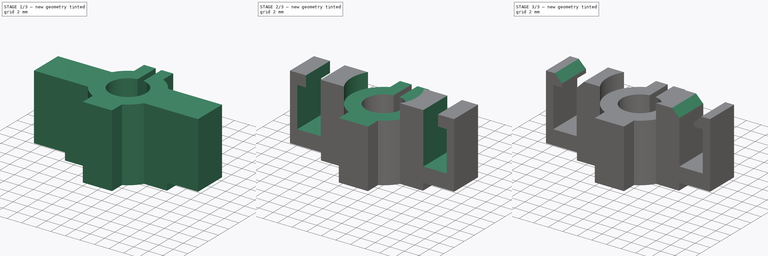
[diagram: build sequence overview — one tinted view per stage of 3, left to right]
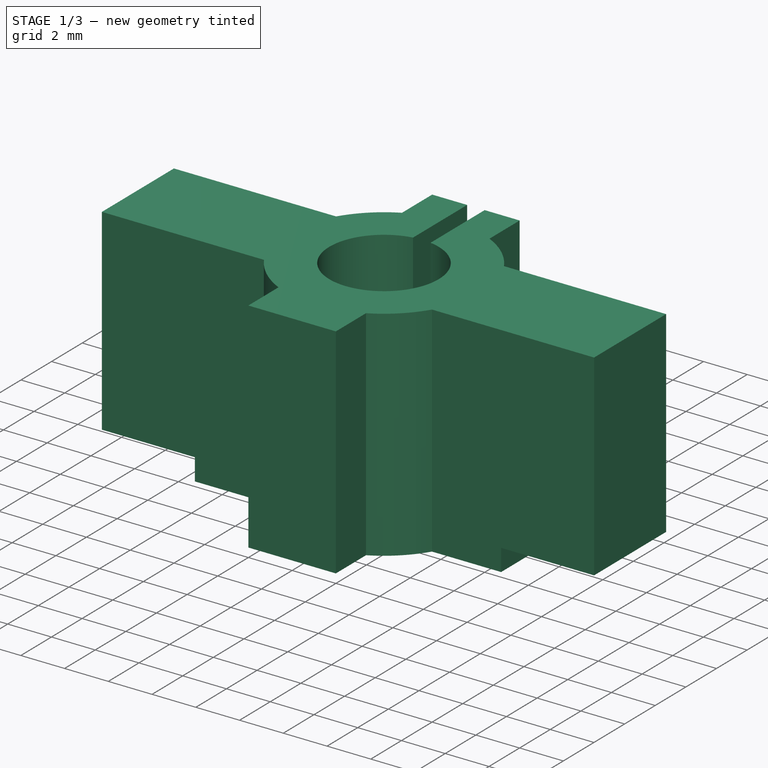
[diagram: stage 1 of 3 — iso view after this stage's code; geometry added in this stage tinted green]
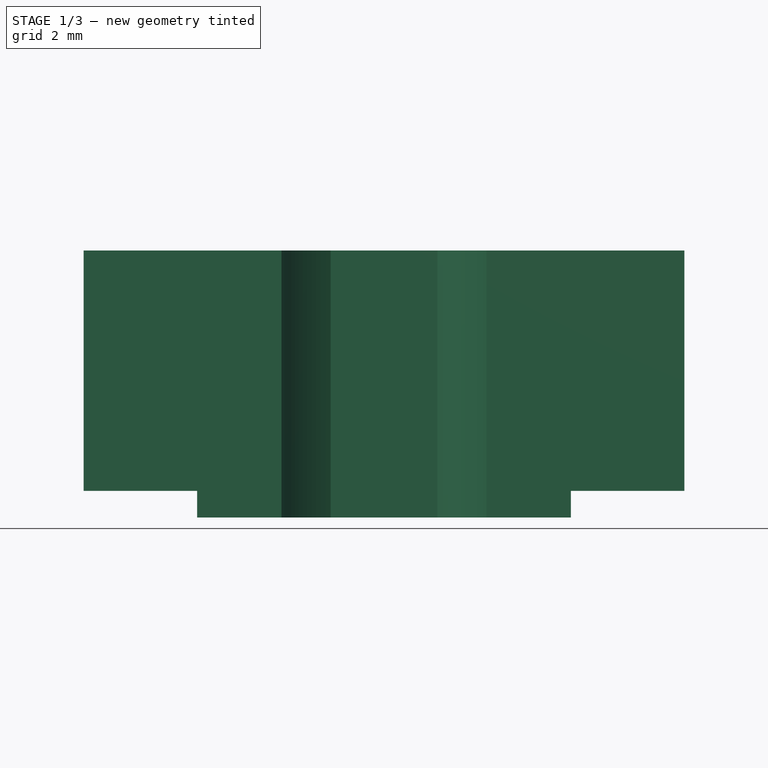
[diagram: stage 1 of 3 — front view after this stage's code; geometry added in this stage tinted green]
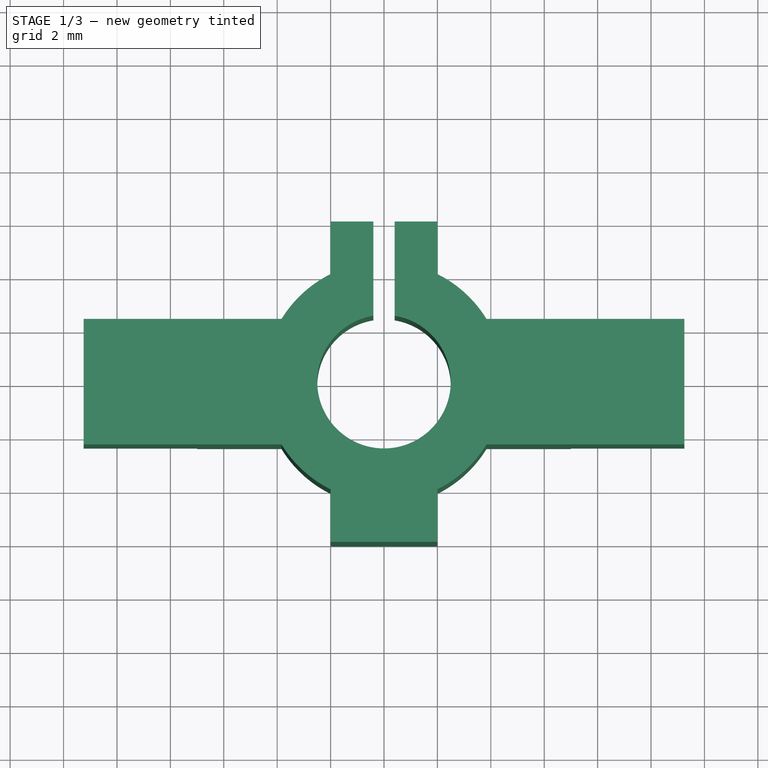
[diagram: stage 1 of 3 — top view after this stage's code; geometry added in this stage tinted green]
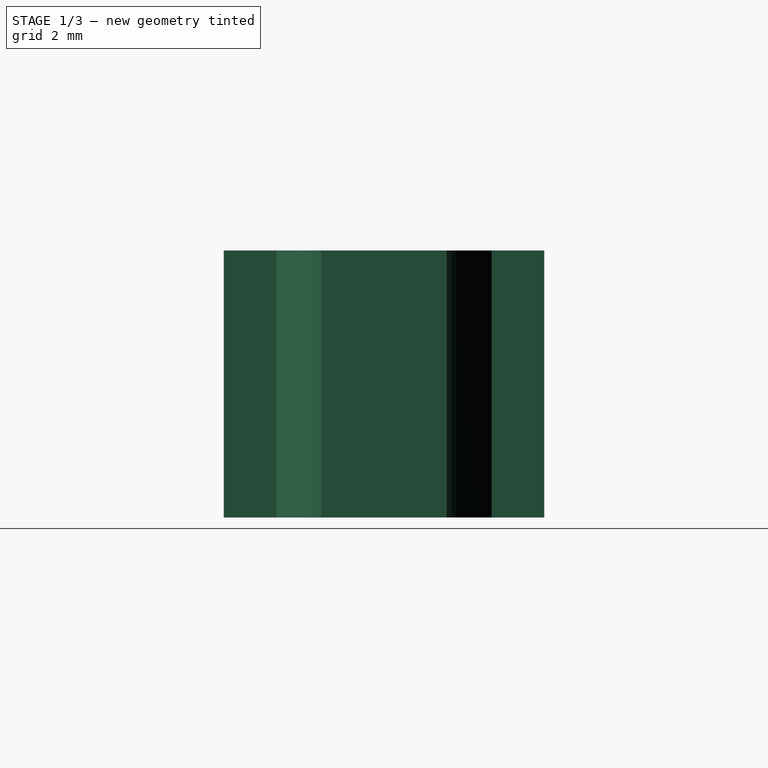
[diagram: stage 1 of 3 — right view after this stage's code; geometry added in this stage tinted green]
FCSTD DOCUMENT  (FreeCAD 0.21R33771 (Git))
Label: DWS1190-MotorBrushHolder
License: All rights reserved
LicenseURL: http://en.wikipedia.org/wiki/All_rights_reserved
objects: Sketcher::SketchObject×5, PartDesign::Pocket×3, PartDesign::Chamfer×3, PartDesign::Pad×1, PartDesign::Body×1
note: 20 computed .brp shape members not serialized (recipe doc carries the construction recipe); baked Part::Feature solids carry a one-line shape summary decoded from their .brp

FEATURE [Sketcher::SketchObject] Sketch
  FullyConstrained = false
  MapMode = 5
  Support = -> [XY_Plane]
  sketch-geometry (20):
    g0: LineSegment StartX=-11.25 StartY=2.35 StartZ=0 EndX=-3.83764 EndY=2.35 EndZ=0
    g1: LineSegment StartX=11.25 StartY=2.35 StartZ=0 EndX=11.25 EndY=-2.35 EndZ=0
    g2: LineSegment StartX=11.25 StartY=-2.35 StartZ=0 EndX=3.83764 EndY=-2.35 EndZ=0
    g3: LineSegment StartX=-11.25 StartY=-2.35 StartZ=0 EndX=-11.25 EndY=2.35 EndZ=0
    g4: LineSegment StartX=2 StartY=6 StartZ=0 EndX=2 EndY=4.03113 EndZ=0
    g5: LineSegment StartX=2 StartY=-6 StartZ=0 EndX=-2 EndY=-6 EndZ=0
    g6: LineSegment StartX=-2 StartY=-6 StartZ=0 EndX=-2 EndY=-4.03113 EndZ=0
    g7: ArcOfCircle CenterX=0 CenterY=0 CenterZ=0 NormalX=0 NormalY=0 NormalZ=1 AngleXU=0 Radius=4.5 StartAngle=5.17294 EndAngle=5.73373
    g8: ArcOfCircle CenterX=0 CenterY=0 CenterZ=0 NormalX=0 NormalY=0 NormalZ=1 AngleXU=0 Radius=2.5 StartAngle=1.73149 EndAngle=7.69329
    g9: LineSegment StartX=-2 StartY=4.03113 StartZ=0 EndX=-2 EndY=6 EndZ=0
    g10: LineSegment StartX=2 StartY=-4.03113 StartZ=0 EndX=2 EndY=-6 EndZ=0
    g11: LineSegment StartX=3.83764 StartY=2.35 StartZ=0 EndX=11.25 EndY=2.35 EndZ=0
    g12: LineSegment StartX=-3.83764 StartY=-2.35 StartZ=0 EndX=-11.25 EndY=-2.35 EndZ=0
    g13: ArcOfCircle CenterX=0 CenterY=0 CenterZ=0 NormalX=0 NormalY=0 NormalZ=1 AngleXU=0 Radius=4.5 StartAngle=0.549455 EndAngle=1.11024
    g14: ArcOfCircle CenterX=0 CenterY=0 CenterZ=0 NormalX=0 NormalY=0 NormalZ=1 AngleXU=0 Radius=4.5 StartAngle=3.69105 EndAngle=4.25183
    g15: ArcOfCircle CenterX=0 CenterY=0 CenterZ=0 NormalX=0 NormalY=0 NormalZ=1 AngleXU=0 Radius=4.5 StartAngle=2.03135 EndAngle=2.59214
    g16: LineSegment StartX=0.4 StartY=6 StartZ=0 EndX=2 EndY=6 EndZ=0
    g17: LineSegment StartX=0.4 StartY=6 StartZ=0 EndX=0.4 EndY=2.46779 EndZ=0
    g18: LineSegment StartX=-2 StartY=6 StartZ=0 EndX=-0.4 EndY=6 EndZ=0
    g19: LineSegment StartX=-0.4 StartY=6 StartZ=0 EndX=-0.4 EndY=2.46779 EndZ=0
  constraints (54):
    c: Coincident(g11,g1)
    c: Coincident(g1,g2)
    c: Coincident(g12,g3)
    c: Coincident(g3,g0)
    c: Horizontal(g0)
    c: Horizontal(g2)
    c: Vertical(g1)
    c: Vertical(g3)
    c: Distance(g1) = 4.7
    c: Symmetric(g11,g12,g-1)
    c: Coincident(g10,g5)
    c: Coincident(g5,g6)
    c: Horizontal(g5)
    c: Vertical(g4)
    c: Vertical(g6)
    c: Coincident(g7,g-1)
    c: Diameter(g7) = 9
    c: Coincident(g8,g7)
    c: Diameter(g8) = 5
    c: PointOnObject(g9,g7)
    c: Distance(g9,g5) = 12
    c: PointOnObject(g4,g7)
    c: Distance(g12,g1) = 22.5
    c: PointOnObject(g0,g7)
    c: PointOnObject(g12,g7)
    c: Coincident(g14,g6)
    c: Coincident(g7,g10)
    c: Equal(g7,g13)
    c: Coincident(g7,g2)
    c: Coincident(g13,g11)
    c: Coincident(g7,g13)
    c: Equal(g13,g14)
    c: PointOnObject(g15,g0)
    c: PointOnObject(g14,g12)
    c: Coincident(g13,g14)
    c: Equal(g13,g15)
    c: PointOnObject(g13,g4)
    c: PointOnObject(g15,g9)
    c: Coincident(g13,g15)
    c: Coincident(g16,g4)
    c: Horizontal(g16)
    c: Distance(g9,g4) = 4
    c: DistanceX(g-2,g9) = -2
    c: Vertical(g9)
    c: Distance(g16) = 1.6
    c: Coincident(g17,g16)
    c: Vertical(g17)
    c: Coincident(g8,g17)
    c: Coincident(g18,g9)
    c: Horizontal(g18)
    c: Distance(g18) = 1.6
    c: Coincident(g19,g18)
    c: Vertical(g19)
    c: Coincident(g8,g19)
FEATURE [PartDesign::Pad] Pad
  Direction = (0,0,1)
  Length = 10
  Length2 = 10
  Profile = -> Sketch
  ReferenceAxis = -> Sketch [N_Axis]
  Type = 0
FEATURE [Sketcher::SketchObject] Sketch001
  ExternalGeometry = -> [Pad]
  FullyConstrained = false
  MapMode = 5
  Placement = pos=(0,0,0) rot=(1,0,0;3.14159rad)
  Support = -> [Pad]
  sketch-geometry (8):
    g0: LineSegment StartX=-7 StartY=6 StartZ=0 EndX=7 EndY=6 EndZ=0
    g1: LineSegment StartX=7 StartY=6 StartZ=0 EndX=7 EndY=-6 EndZ=0
    g2: LineSegment StartX=7 StartY=-6 StartZ=0 EndX=-7 EndY=-6 EndZ=0
    g3: LineSegment StartX=-7 StartY=-6 StartZ=0 EndX=-7 EndY=6 EndZ=0
    g4: LineSegment StartX=-15.2303 StartY=8.63847 StartZ=0 EndX=13.2242 EndY=8.63847 EndZ=0
    g5: LineSegment StartX=13.2242 StartY=8.63847 StartZ=0 EndX=13.2242 EndY=-9.44083 EndZ=0
    g6: LineSegment StartX=13.2242 StartY=-9.44083 StartZ=0 EndX=-15.2303 EndY=-9.44083 EndZ=0
    g7: LineSegment StartX=-15.2303 StartY=-9.44083 StartZ=0 EndX=-15.2303 EndY=8.63847 EndZ=0
  constraints (18):
    c: Coincident(g0,g1)
    c: Coincident(g1,g2)
    c: Coincident(g2,g3)
    c: Coincident(g3,g0)
    c: Horizontal(g2)
    c: Vertical(g3)
    c: Coincident(g4,g5)
    c: Coincident(g5,g6)
    c: Coincident(g6,g7)
    c: Coincident(g7,g4)
    c: Horizontal(g4)
    c: Horizontal(g6)
    c: Vertical(g5)
    c: Vertical(g7)
    c: Distance(g0) = 14
    c: Distance(g1) = 12
    c: Symmetric(g0,g0,g-2)
    c: Symmetric(g1,g0,g-1)
FEATURE [PartDesign::Pocket] Pocket
  BaseFeature = -> Pad
  Direction = (0,0,1)
  Length = 1
  Length2 = 5
  Profile = -> Sketch001
  ReferenceAxis = -> Sketch001 [N_Axis]
  Type = 0
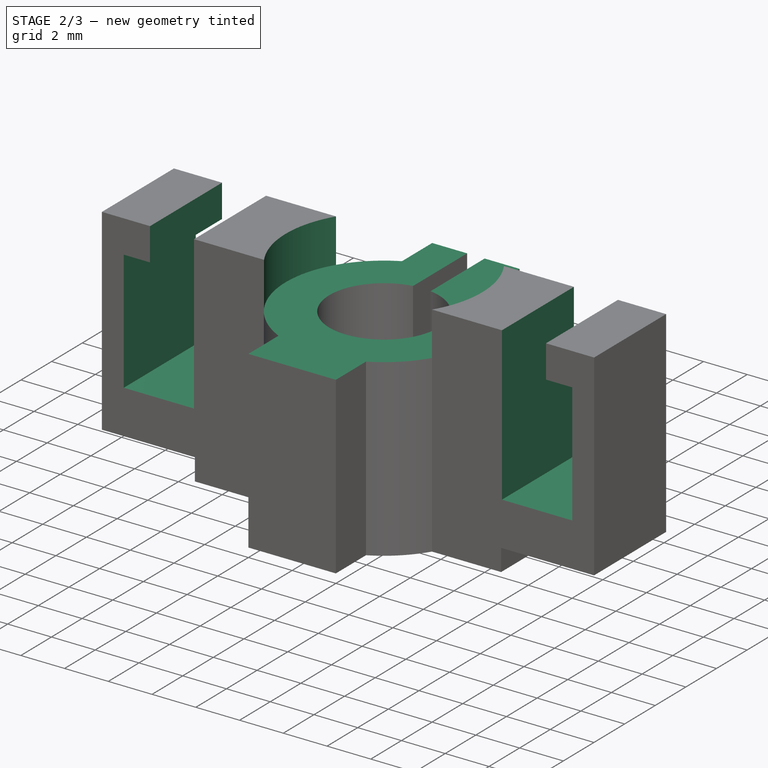
[diagram: stage 2 of 3 — iso view after this stage's code; geometry added in this stage tinted green]
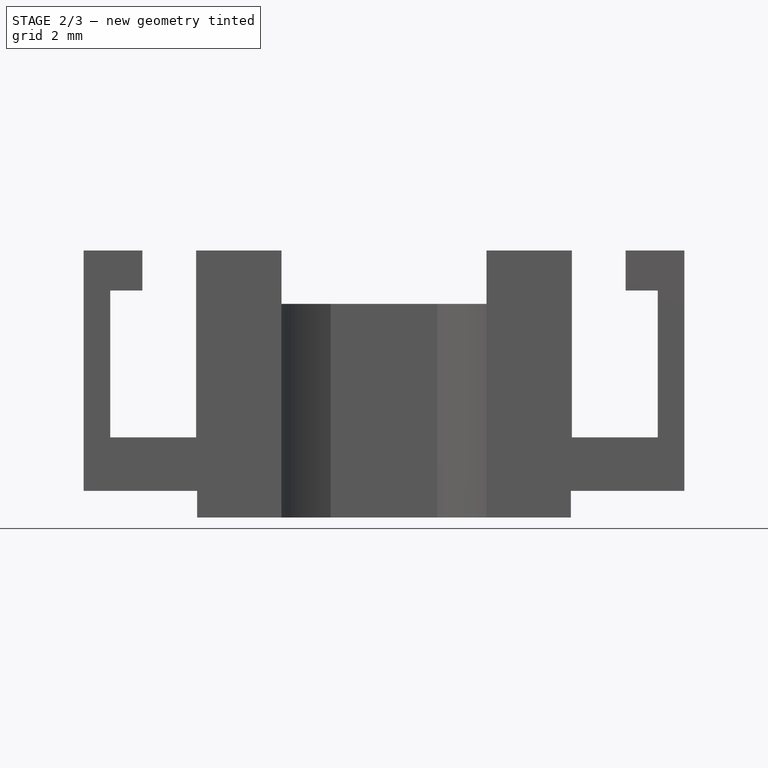
[diagram: stage 2 of 3 — front view after this stage's code; geometry added in this stage tinted green]
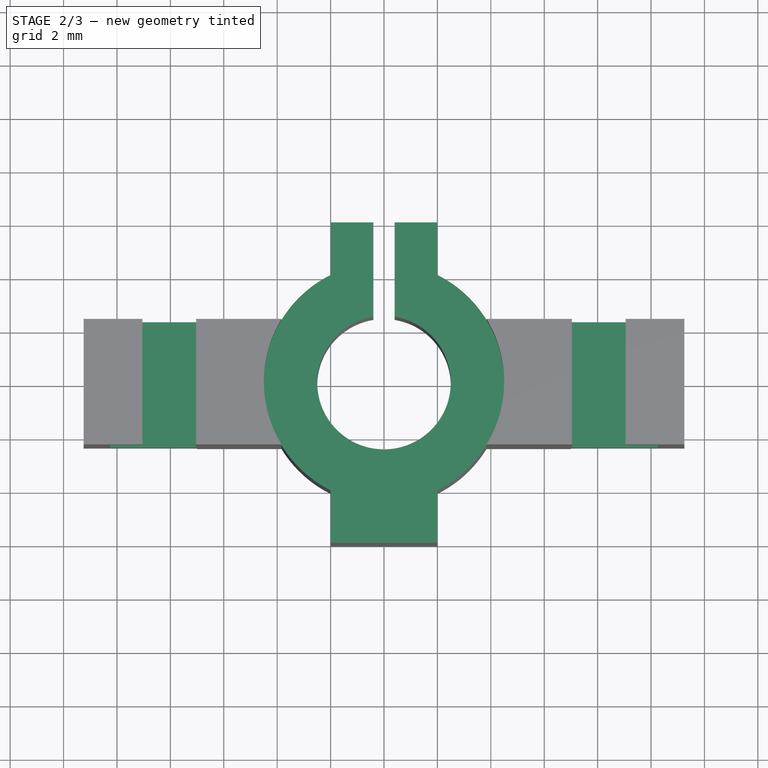
[diagram: stage 2 of 3 — top view after this stage's code; geometry added in this stage tinted green]
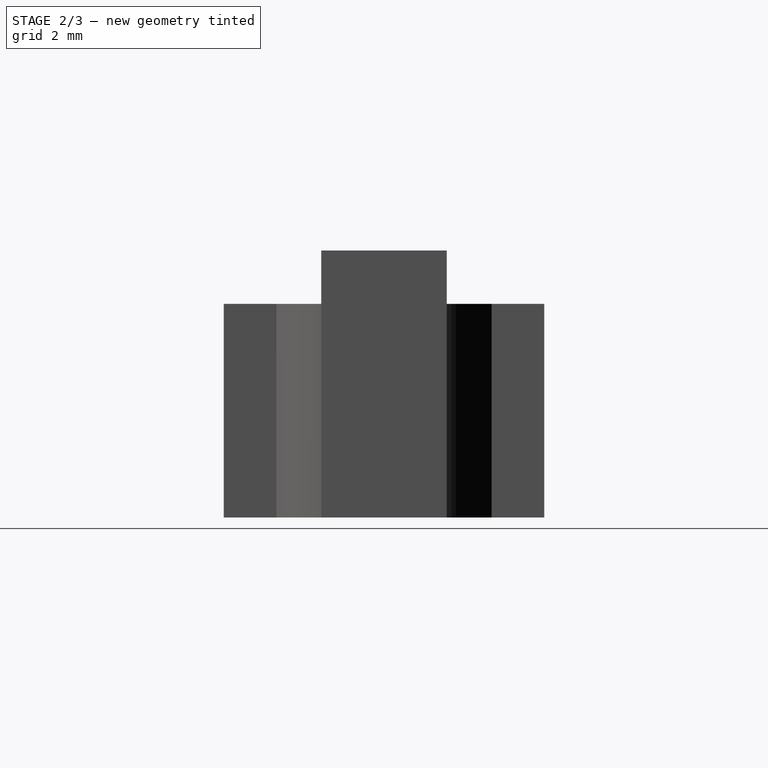
[diagram: stage 2 of 3 — right view after this stage's code; geometry added in this stage tinted green]
FEATURE [Sketcher::SketchObject] Sketch002
  ExternalGeometry = -> [Pocket]
  FullyConstrained = false
  MapMode = 5
  Placement = pos=(0,0,10) rot=(0,0,1;0rad)
  Support = -> [Pocket]
  sketch-geometry (8):
    g0: ArcOfCircle CenterX=0 CenterY=0 CenterZ=0 NormalX=0 NormalY=0 NormalZ=1 AngleXU=0 Radius=4.5 StartAngle=2.03135 EndAngle=4.25183
    g1: LineSegment StartX=-2 StartY=6 StartZ=0 EndX=2 EndY=6 EndZ=0
    g2: LineSegment StartX=2 StartY=6 StartZ=0 EndX=2 EndY=4.03113 EndZ=0
    g3: LineSegment StartX=-2 StartY=4.03113 StartZ=0 EndX=-2 EndY=6 EndZ=0
    g4: LineSegment StartX=-2 StartY=-6 StartZ=0 EndX=2 EndY=-6 EndZ=0
    g5: LineSegment StartX=2 StartY=-6 StartZ=0 EndX=2 EndY=-4.03113 EndZ=0
    g6: LineSegment StartX=-2 StartY=-4.03113 StartZ=0 EndX=-2 EndY=-6 EndZ=0
    g7: ArcOfCircle CenterX=0 CenterY=0 CenterZ=0 NormalX=0 NormalY=0 NormalZ=1 AngleXU=0 Radius=4.5 StartAngle=5.17294 EndAngle=7.39343
  constraints (21):
    c: Coincident(g0,g-4)
    c: Coincident(g1,g2)
    c: Coincident(g3,g1)
    c: Horizontal(g1)
    c: Vertical(g2)
    c: Vertical(g3)
    c: Coincident(g1,g-6)
    c: Coincident(g2,g-7)
    c: Coincident(g7,g2)
    c: Coincident(g4,g5)
    c: Coincident(g6,g4)
    c: Horizontal(g4)
    c: Vertical(g5)
    c: Vertical(g6)
    c: Coincident(g4,g-10)
    c: Coincident(g5,g-11)
    c: Equal(g0,g7)
    c: PointOnObject(g0,g-9)
    c: PointOnObject(g7,g5)
    c: Coincident(g0,g7)
    c: Coincident(g0,g3)
FEATURE [PartDesign::Pocket] Pocket001
  BaseFeature = -> Pocket
  Direction = (0,0,-1)
  Length = 2
  Length2 = 5
  Profile = -> Sketch002
  ReferenceAxis = -> Sketch002 [N_Axis]
  Type = 0
FEATURE [Sketcher::SketchObject] Sketch003
  ExternalGeometry = -> [Pocket001]
  FullyConstrained = false
  MapMode = 5
  Placement = pos=(-4e-16,-2.35,0) rot=(1,0,0;1.5708rad)
  Support = -> [Pocket001]
  sketch-geometry (22):
    g0: LineSegment StartX=-9.05 StartY=10 StartZ=0 EndX=-9.05 EndY=8.5 EndZ=0
    g1: LineSegment StartX=-9.05 StartY=8.5 StartZ=0 EndX=-10.25 EndY=8.5 EndZ=0
    g2: LineSegment StartX=-10.25 StartY=8.5 StartZ=0 EndX=-10.25 EndY=3 EndZ=0
    g3: LineSegment StartX=-10.25 StartY=3 StartZ=0 EndX=-7.03764 EndY=3 EndZ=0
    g4: LineSegment StartX=-7.03764 StartY=3 StartZ=0 EndX=-7.03764 EndY=10 EndZ=0
    g5: LineSegment StartX=-7.03764 StartY=10 StartZ=0 EndX=-9.05 EndY=10 EndZ=0
    g6: LineSegment StartX=-3.83764 StartY=9.30932 StartZ=0 EndX=-7.03764 EndY=9.30932 EndZ=0
    g7: LineSegment StartX=-11.25 StartY=5.23308 StartZ=0 EndX=-10.25 EndY=5.23308 EndZ=0
    g8: LineSegment StartX=-9.17126 StartY=10 StartZ=0 EndX=-9.17126 EndY=8.5 EndZ=0
    g9: LineSegment StartX=-9.05 StartY=10 StartZ=0 EndX=-11.25 EndY=10 EndZ=0
    g10: LineSegment StartX=-9.47002 StartY=1 StartZ=0 EndX=-9.47002 EndY=3 EndZ=0
    g11: LineSegment StartX=9.05 StartY=10 StartZ=0 EndX=9.05 EndY=8.5 EndZ=0
    g12: LineSegment StartX=9.05 StartY=8.5 StartZ=0 EndX=10.25 EndY=8.5 EndZ=0
    g13: LineSegment StartX=10.25 StartY=8.5 StartZ=0 EndX=10.25 EndY=3 EndZ=0
    g14: LineSegment StartX=10.25 StartY=3 StartZ=0 EndX=7.03764 EndY=3 EndZ=0
    g15: LineSegment StartX=7.03764 StartY=3 StartZ=0 EndX=7.03764 EndY=10 EndZ=0
    g16: LineSegment StartX=7.03764 StartY=10 StartZ=0 EndX=9.05 EndY=10 EndZ=0
    g17: LineSegment StartX=3.83764 StartY=9.30932 StartZ=0 EndX=7.03764 EndY=9.30932 EndZ=0
    g18: LineSegment StartX=11.25 StartY=5.23308 StartZ=0 EndX=10.25 EndY=5.23308 EndZ=0
    g19: LineSegment StartX=9.17126 StartY=10 StartZ=0 EndX=9.17126 EndY=8.5 EndZ=0
    g20: LineSegment StartX=9.05 StartY=10 StartZ=0 EndX=11.25 EndY=10 EndZ=0
    g21: LineSegment StartX=9.47002 StartY=1 StartZ=0 EndX=9.47002 EndY=3 EndZ=0
  constraints (57):
    c: PointOnObject(g0,g-5)
    c: Vertical(g0)
    c: Coincident(g0,g1)
    c: Horizontal(g1)
    c: Coincident(g1,g2)
    c: Vertical(g2)
    c: Coincident(g2,g3)
    c: Horizontal(g3)
    c: Coincident(g3,g4)
    c: PointOnObject(g4,g-5)
    c: Vertical(g4)
    c: Coincident(g4,g5)
    c: Coincident(g5,g0)
    c: PointOnObject(g6,g-6)
    c: PointOnObject(g6,g4)
    c: Horizontal(g6)
    c: Distance(g6) = 3.2
    c: PointOnObject(g7,g-4)
    c: PointOnObject(g7,g2)
    c: Horizontal(g7)
    c: Distance(g7) = 1
    c: PointOnObject(g8,g-5)
    c: PointOnObject(g8,g1)
    c: Vertical(g8)
    c: Distance(g8) = 1.5
    c: Coincident(g9,g0)
    c: Coincident(g9,g-5)
    c: Distance(g9) = 2.2
    c: PointOnObject(g10,g-3)
    c: PointOnObject(g10,g3)
    c: Vertical(g10)
    c: Distance(g10) = 2
    c: Vertical(g11)
    c: Coincident(g11,g12)
    c: Horizontal(g12)
    c: Coincident(g12,g13)
    c: Vertical(g13)
    c: Coincident(g13,g14)
    c: Horizontal(g14)
    c: Coincident(g14,g15)
    c: Vertical(g15)
    c: Coincident(g15,g16)
    c: Coincident(g16,g11)
    c: PointOnObject(g17,g15)
    c: Horizontal(g17)
    c: Distance(g17) = 3.2
    c: PointOnObject(g18,g13)
    c: Horizontal(g18)
    c: Distance(g18) = 1
    c: PointOnObject(g19,g12)
    c: Vertical(g19)
    c: Distance(g19) = 1.5
    c: Coincident(g20,g11)
    c: Distance(g20) = 2.2
    c: PointOnObject(g21,g14)
    c: Vertical(g21)
    c: Distance(g21) = 2
FEATURE [PartDesign::Pocket] Pocket002
  BaseFeature = -> Pocket001
  Direction = (2e-16,1,-2e-16)
  Length = 5
  Length2 = 5
  Profile = -> Sketch003
  ReferenceAxis = -> Sketch003 [N_Axis]
  Type = 0
FEATURE [PartDesign::Chamfer] Chamfer
  Angle = 45
  Base = -> Pocket002 [Edge20]
  BaseFeature = -> Pocket002
  ChamferType = 0
  FlipDirection = false
  Size = 1
  Size2 = 1
  SupportTransform = false
  UseAllEdges = false
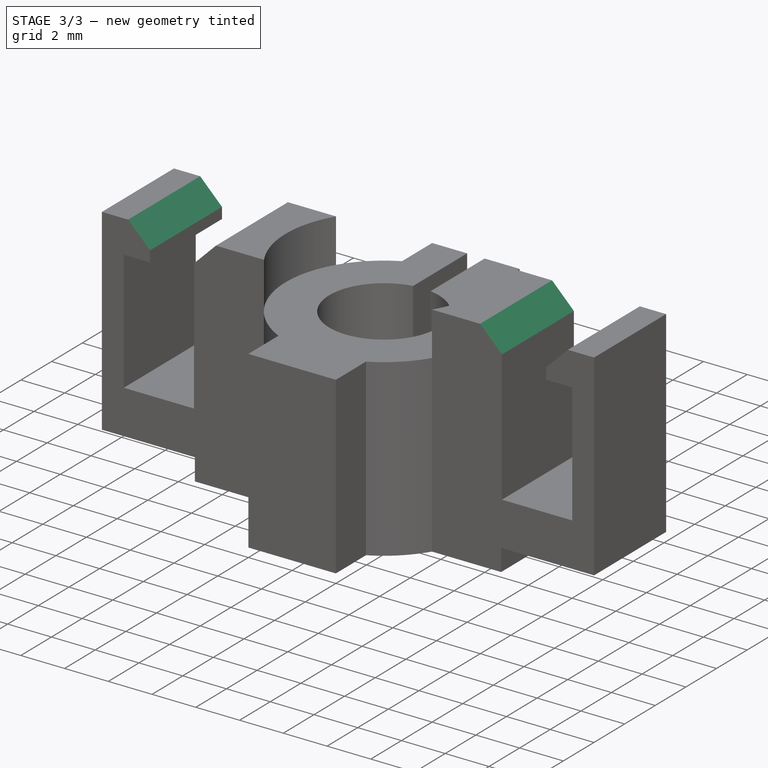
[diagram: stage 3 of 3 — iso view after this stage's code; geometry added in this stage tinted green]
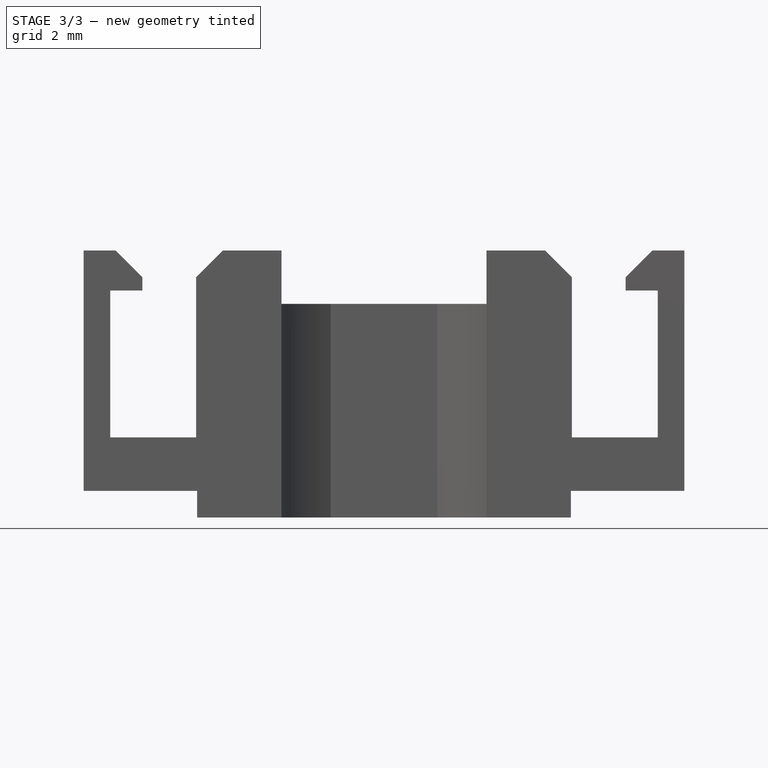
[diagram: stage 3 of 3 — front view after this stage's code; geometry added in this stage tinted green]
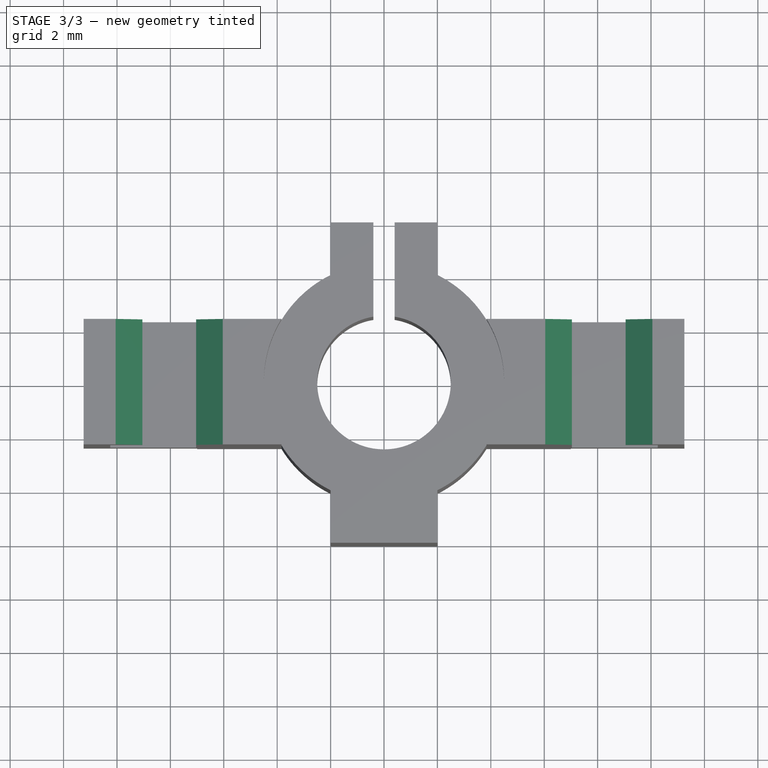
[diagram: stage 3 of 3 — top view after this stage's code; geometry added in this stage tinted green]
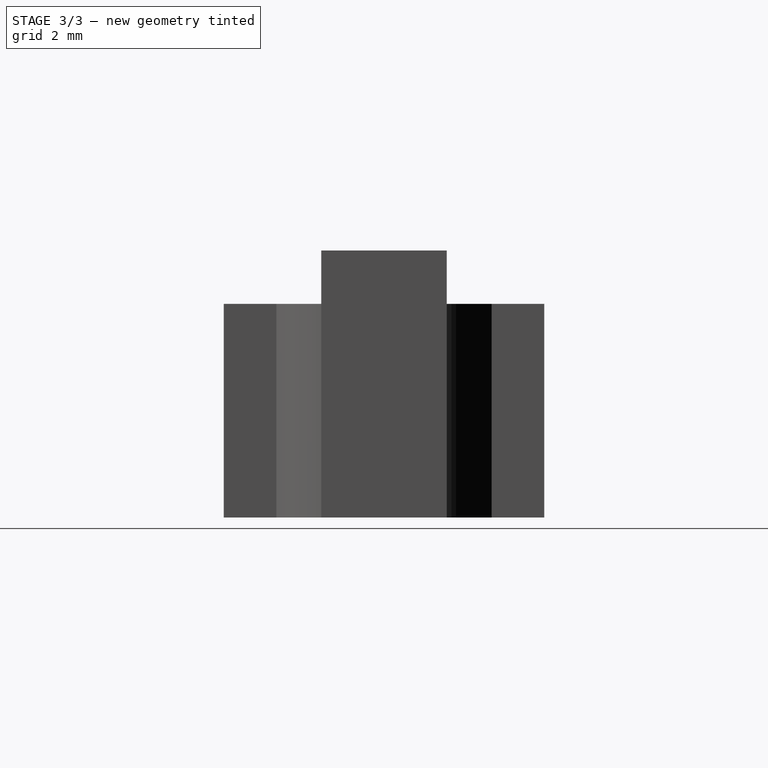
[diagram: stage 3 of 3 — right view after this stage's code; geometry added in this stage tinted green]
FEATURE [Sketcher::SketchObject] Sketch004
  FullyConstrained = true
  MapMode = 5
  Placement = pos=(7e-16,2.35,0) rot=(0,0.707107,0.707107;3.14159rad)
  Support = -> [Chamfer]
FEATURE [PartDesign::Chamfer] Chamfer001
  Angle = 45
  Base = -> Chamfer [Edge113,Edge127]
  BaseFeature = -> Chamfer
  ChamferType = 0
  FlipDirection = false
  Size = 1
  Size2 = 1
  SupportTransform = false
  UseAllEdges = false
FEATURE [PartDesign::Chamfer] Chamfer002
  Angle = 45
  Base = -> Chamfer001 [Edge56,Edge132]
  BaseFeature = -> Chamfer001
  ChamferType = 0
  FlipDirection = false
  Size = 1
  Size2 = 1
  SupportTransform = false
  UseAllEdges = false
FEATURE [PartDesign::Body] Body
  Group = -> [Sketch,Pad,Sketch001,Pocket,Sketch002,Pocket001,Sketch003,Pocket002,Chamfer,Sketch004,Chamfer001,Chamfer002]
  Origin = -> Origin
  Tip = -> Chamfer002
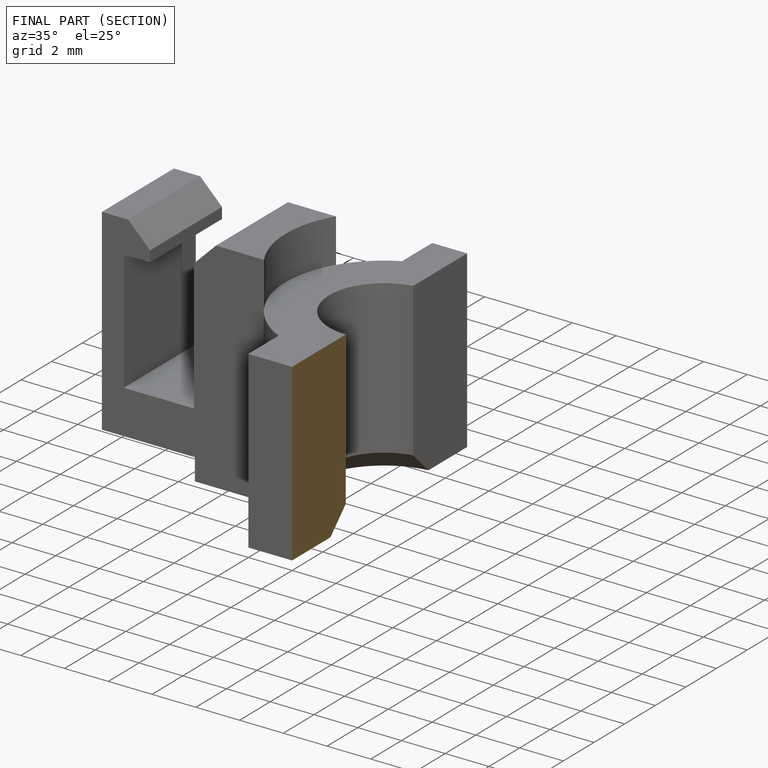
[diagram: finished part — half-section view (interior)]
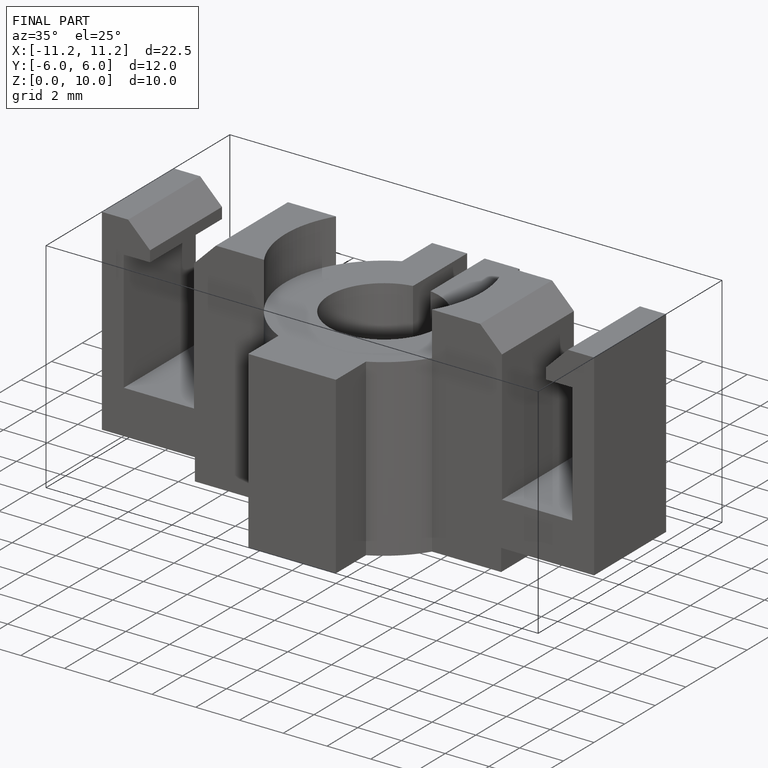
[diagram: finished part — iso view with bounding-box wireframe]
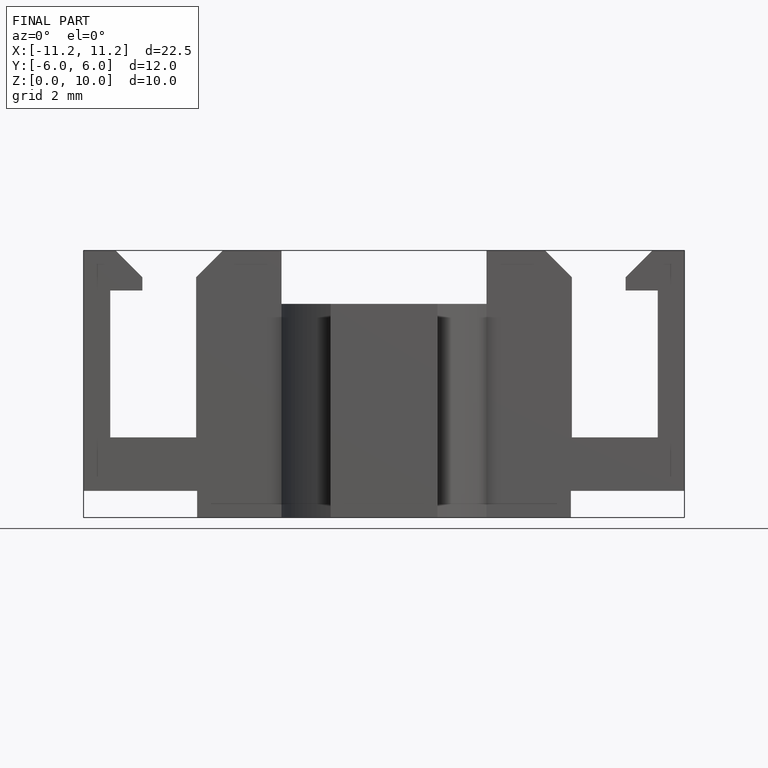
[diagram: finished part — front view with bounding-box wireframe]
